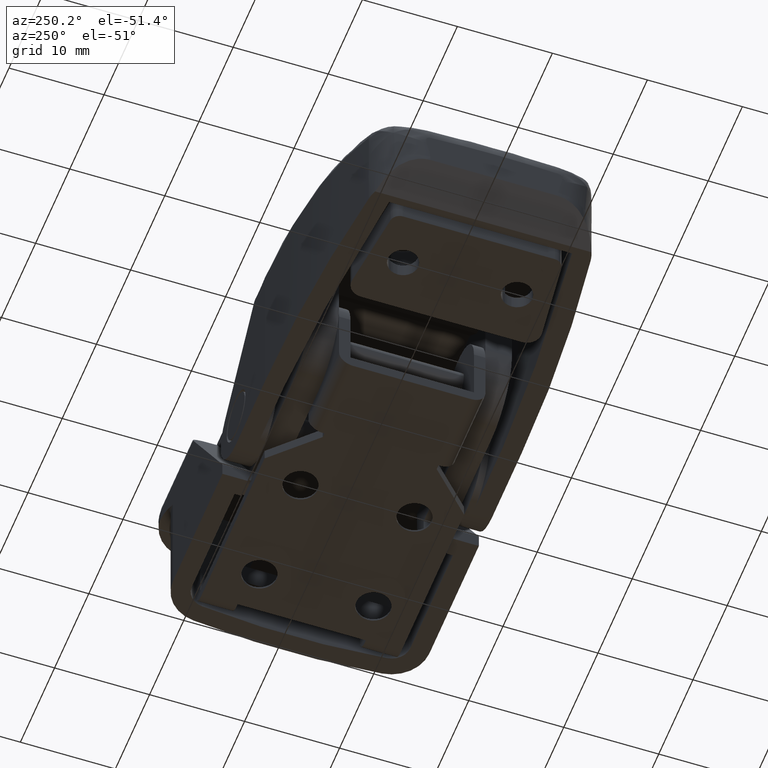
[diagram: clean part render]
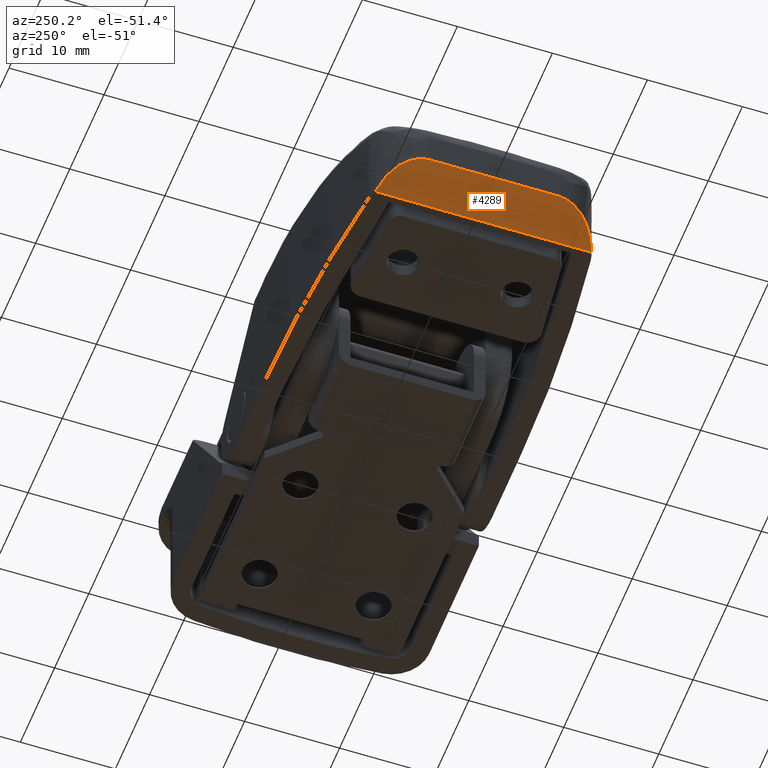
[diagram: same view with one face highlighted and labeled with its STEP entity id]
A machine part, auxiliary view. The second image highlights one B-rep face of the part: STEP entity #4289.
In plain terms, the highlighted planar face has unit normal (0.7071, -0, 0.7071).
Its self-contained STEP definition (entity closure, byte-faithful):
#53=ELLIPSE('',#4582,7.07106781186548,5.);
#55=ELLIPSE('',#4588,7.07106781186548,5.);
#314=PLANE('',#4602);
#478=FACE_OUTER_BOUND('',#762,.T.);
#762=EDGE_LOOP('',(#3256,#3257,#3258,#3259));
#1075=LINE('',#7788,#1406);
#1076=LINE('',#7789,#1407);
#1406=VECTOR('',#5272,22.7864321732208);
#1407=VECTOR('',#5273,13.4569091414683);
#1961=VERTEX_POINT('',#7573);
#1962=VERTEX_POINT('',#7574);
#1965=VERTEX_POINT('',#7640);
#1967=VERTEX_POINT('',#7644);
#2427=EDGE_CURVE('',#1961,#1962,#53,.T.);
#2437=EDGE_CURVE('',#1967,#1965,#55,.T.);
#2457=EDGE_CURVE('',#1965,#1961,#1075,.T.);
#2458=EDGE_CURVE('',#1962,#1967,#1076,.T.);
#3256=ORIENTED_EDGE('',*,*,#2427,.F.);
#3257=ORIENTED_EDGE('',*,*,#2457,.F.);
#3258=ORIENTED_EDGE('',*,*,#2437,.F.);
#3259=ORIENTED_EDGE('',*,*,#2458,.F.);
#4289=ADVANCED_FACE('',(#478),#314,.F.);
#4582=AXIS2_PLACEMENT_3D('',#7575,#5218,#5219);
#4588=AXIS2_PLACEMENT_3D('',#7646,#5234,#5235);
#4602=AXIS2_PLACEMENT_3D('',#7787,#5270,#5271);
#5218=DIRECTION('center_axis',(0.707106781186548,0.707106781186548,0.));
#5219=DIRECTION('ref_axis',(-0.707106781186548,0.707106781186548,3.92523114670944E-17));
#5234=DIRECTION('center_axis',(0.707106781186548,0.707106781186548,0.));
#5235=DIRECTION('ref_axis',(-0.707106781186548,0.707106781186548,0.));
#5270=DIRECTION('center_axis',(0.707106781186548,0.707106781186548,0.));
#5271=DIRECTION('ref_axis',(0.,0.,-1.));
#5272=DIRECTION('',(0.,0.,-1.));
#5273=DIRECTION('',(0.,0.,1.));
#7573=CARTESIAN_POINT('',(-34.8,-4.5,-11.3932160866104));
#7574=CARTESIAN_POINT('',(-38.,-1.3,-6.72845457073411));
#7575=CARTESIAN_POINT('Origin',(-33.,-6.29999999999998,-6.72845457073411));
#7640=CARTESIAN_POINT('',(-34.8,-4.5,11.3932160866104));
#7644=CARTESIAN_POINT('',(-38.,-1.3,6.72845457073414));
#7646=CARTESIAN_POINT('Origin',(-33.,-6.29999999999996,6.72845457073414));
#7787=CARTESIAN_POINT('Origin',(-38.,-1.30000000000002,0.));
#7788=CARTESIAN_POINT('',(-34.8,-4.5,0.));
#7789=CARTESIAN_POINT('',(-38.,-1.3,0.));